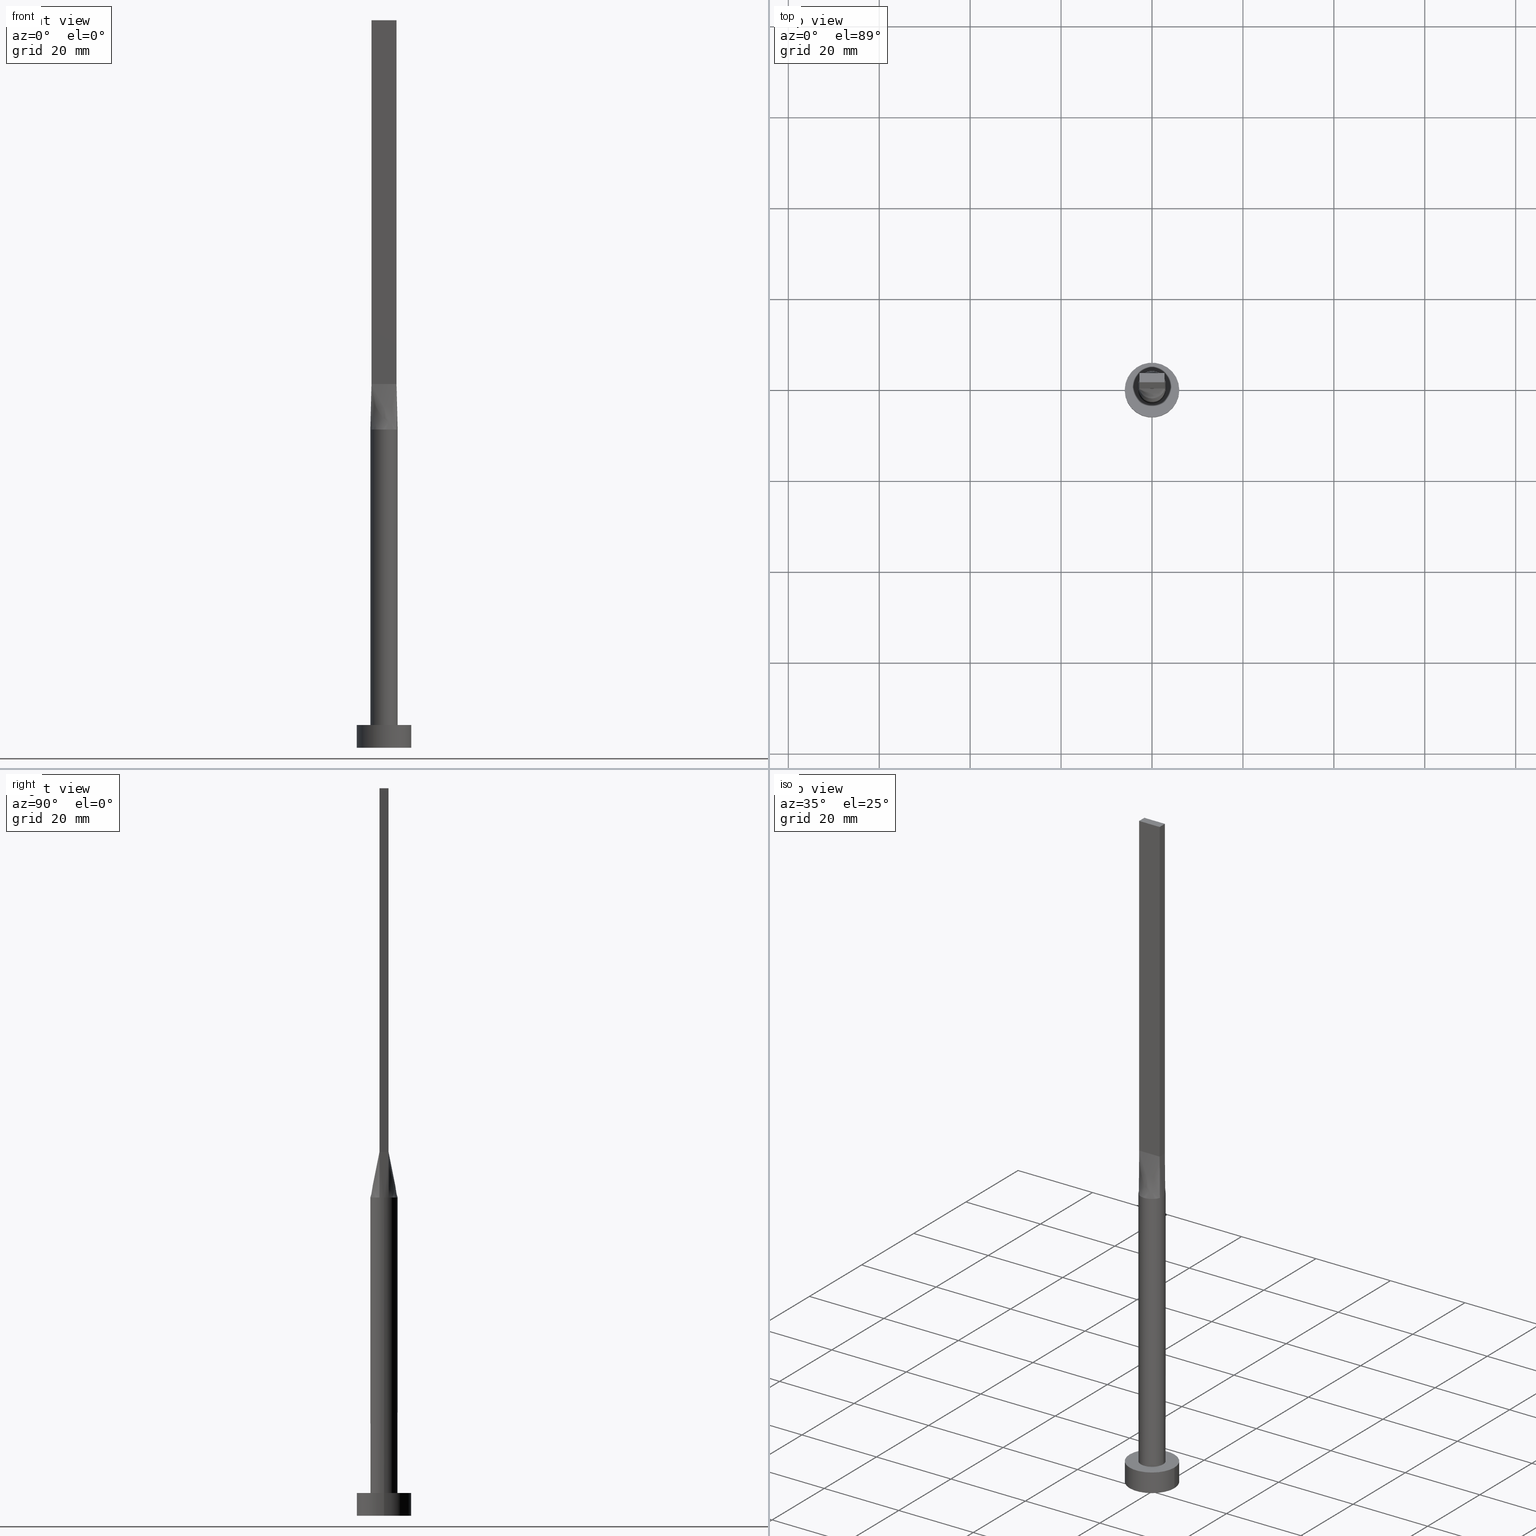
[diagram: canonical four-view strip — front | top / right | iso, engineering-drawing reading convention]
A machine part, canonical four-view strip (front | top / right | iso — engineering-drawing reading convention). The complete STEP part file that produces these views, byte-faithful:
ISO-10303-21;
HEADER;
FILE_DESCRIPTION (( 'STEP AP203' ),
    '1' );
FILE_NAME ('f26c.STEP',
    '2023-02-13T10:27:28',
    ( '' ),
    ( '' ),
    'SwSTEP 2.0',
    'SolidWorks 2019',
    '' );
FILE_SCHEMA (( 'CONFIG_CONTROL_DESIGN' ));
ENDSEC;

DATA;
#1 = LINE ( 'NONE', #88, #5 ) ;
#2 = FACE_OUTER_BOUND ( 'NONE', #549, .T. ) ;
#3 = EDGE_LOOP ( 'NONE', ( #19, #488, #434, #254 ) ) ;
#4 = CALENDAR_DATE ( 2023, 13, 2 ) ;
#5 = VECTOR ( 'NONE', #262, 1000.000000000000000 ) ;
#6 = PLANE ( 'NONE',  #38 ) ;
#7 = ADVANCED_FACE ( 'NONE', ( #551 ), #134, .T. ) ;
#8 = DIRECTION ( 'NONE',  ( 1.000000000000000000, 0.000000000000000000, -0.000000000000000000 ) ) ;
#9 = ORIENTED_EDGE ( 'NONE', *, *, #328, .T. ) ;
#10 = PERSON_AND_ORGANIZATION ( #141, #87 ) ;
#11 = CARTESIAN_POINT ( 'NONE',  ( 2.819412401233197141, 1.025240989080170806, 70.00000000000000000 ) ) ;
#12 = VERTEX_POINT ( 'NONE', #59 ) ;
#13 = DATE_TIME_ROLE ( 'creation_date' ) ;
#14 = EDGE_CURVE ( 'NONE', #447, #267, #521, .T. ) ;
#15 = DIRECTION ( 'NONE',  ( -0.000000000000000000, -0.000000000000000000, -1.000000000000000000 ) ) ;
#16 = CC_DESIGN_APPROVAL ( #357, ( #471 ) ) ;
#17 = CARTESIAN_POINT ( 'NONE',  ( -0.4583333333333324267, 1.000000000000000000, 79.99999999999998579 ) ) ;
#18 = EDGE_CURVE ( 'NONE', #450, #12, #317, .T. ) ;
#19 = ORIENTED_EDGE ( 'NONE', *, *, #519, .T. ) ;
#20 = CARTESIAN_POINT ( 'NONE',  ( -2.819380270465311700, -1.025229189260111973, 70.00000000000000000 ) ) ;
#21 = CARTESIAN_POINT ( 'NONE',  ( 0.6998073349918605413, 2.936959335800557014, 69.99999999999997158 ) ) ;
#22 = CARTESIAN_POINT ( 'NONE',  ( -1.604166666666665186, 1.000000000000000000, 79.99999999999998579 ) ) ;
#23 = CARTESIAN_POINT ( 'NONE',  ( 0.000000000000000000, 0.000000000000000000, 70.00000000000000000 ) ) ;
#24 = EDGE_CURVE ( 'NONE', #315, #439, #117, .T. ) ;
#25 = CARTESIAN_POINT ( 'NONE',  ( -1.338960936578150518, -2.706038443291638007, 70.00000000000000000 ) ) ;
#26 = CARTESIAN_POINT ( 'NONE',  ( 0.6998073349918603192, -2.936959335800557902, 70.00000000000001421 ) ) ;
#27 = DIRECTION ( 'NONE',  ( 0.006937837988376413349, -0.002522850177591350138, 0.9999727504442450510 ) ) ;
#28 = UNCERTAINTY_MEASURE_WITH_UNIT (LENGTH_MEASURE( 1.000000000000000082E-05 ), #429, 'distance_accuracy_value', 'NONE');
#29 = DIRECTION ( 'NONE',  ( -0.000000000000000000, -0.000000000000000000, -1.000000000000000000 ) ) ;
#30 = CARTESIAN_POINT ( 'NONE',  ( 2.750000000000000000, -0.9999999999999997780, 80.00000000000000000 ) ) ;
#31 = CARTESIAN_POINT ( 'NONE',  ( 2.314486317179579533, -1.928337902455807606, 70.00000000000001421 ) ) ;
#32 = LINE ( 'NONE', #255, #285 ) ;
#33 = ORIENTED_EDGE ( 'NONE', *, *, #383, .T. ) ;
#34 = FACE_OUTER_BOUND ( 'NONE', #179, .T. ) ;
#35 = CARTESIAN_POINT ( 'NONE',  ( -2.819380270465311700, -1.025229189260112195, 70.00000000000000000 ) ) ;
#36 = ORIENTED_EDGE ( 'NONE', *, *, #486, .T. ) ;
#37 = CIRCLE ( 'NONE', #360, 6.000000000000000888 ) ;
#38 = AXIS2_PLACEMENT_3D ( 'NONE', #499, #98, #184 ) ;
#39 = FACE_OUTER_BOUND ( 'NONE', #493, .T. ) ;
#40 = LINE ( 'NONE', #218, #489 ) ;
#41 = ORIENTED_EDGE ( 'NONE', *, *, #157, .F. ) ;
#42 = APPROVAL_STATUS ( 'not_yet_approved' ) ;
#43 = ORIENTED_EDGE ( 'NONE', *, *, #80, .F. ) ;
#44 = VERTEX_POINT ( 'NONE', #336 ) ;
#45 = AXIS2_PLACEMENT_3D ( 'NONE', #472, #368, #339 ) ;
#46 = LOCAL_TIME ( 11, 27, 28.00000000000000000, #389 ) ;
#47 = DIRECTION ( 'NONE',  ( -1.000000000000000000, -0.000000000000000000, -0.000000000000000000 ) ) ;
#48 = CIRCLE ( 'NONE', #387, 3.000000000000000444 ) ;
#49 = ORIENTED_EDGE ( 'NONE', *, *, #455, .F. ) ;
#50 = CALENDAR_DATE ( 2023, 13, 2 ) ;
#51 = CARTESIAN_POINT ( 'NONE',  ( -2.115507543051069916, 2.149870311632977593, 69.99999999999998579 ) ) ;
#52 = CC_DESIGN_PERSON_AND_ORGANIZATION_ASSIGNMENT ( #316, #503, ( #151 ) ) ;
#53 = CARTESIAN_POINT ( 'NONE',  ( -1.338960936578149408, 2.706038443291637119, 69.99999999999998579 ) ) ;
#54 = CC_DESIGN_APPROVAL ( #445, ( #151 ) ) ;
#55 = CARTESIAN_POINT ( 'NONE',  ( -2.520833333333332593, 1.000000000000000000, 79.99999999999998579 ) ) ;
#56 = CARTESIAN_POINT ( 'NONE',  ( -2.750000000000000000, -0.9999999999999993339, 80.00000000000000000 ) ) ;
#57 = DIRECTION ( 'NONE',  ( -0.000000000000000000, -0.000000000000000000, -1.000000000000000000 ) ) ;
#58 = DIRECTION ( 'NONE',  ( 0.000000000000000000, -0.000000000000000000, -1.000000000000000000 ) ) ;
#59 = CARTESIAN_POINT ( 'NONE',  ( 3.000000000000000444, 3.673940397442060361E-16, 5.000000000000000000 ) ) ;
#60 = ADVANCED_FACE ( 'NONE', ( #250 ), #205, .T. ) ;
#61 = CARTESIAN_POINT ( 'NONE',  ( -2.115507543051069916, 2.149870311632977593, 69.99999999999998579 ) ) ;
#62 = DIRECTION ( 'NONE',  ( 0.000000000000000000, 0.000000000000000000, 1.000000000000000000 ) ) ;
#63 = CARTESIAN_POINT ( 'NONE',  ( 2.520833333333333037, 1.000000000000000000, 80.00000000000000000 ) ) ;
#64 = CARTESIAN_POINT ( 'NONE',  ( 2.749999999999999556, 1.000000000000000000, 160.0000000000000000 ) ) ;
#65 = DIRECTION ( 'NONE',  ( 1.000000000000000000, 0.000000000000000000, 0.000000000000000000 ) ) ;
#66 = AXIS2_PLACEMENT_3D ( 'NONE', #173, #217, #347 ) ;
#67 = CARTESIAN_POINT ( 'NONE',  ( -2.115507543051069472, -2.149870311632975373, 70.00000000000000000 ) ) ;
#68 = CARTESIAN_POINT ( 'NONE',  ( 2.750000000000000000, -0.9999999999999997780, 160.0000000000000000 ) ) ;
#69 = CARTESIAN_POINT ( 'NONE',  ( 3.000000000000000444, -0.3523499553598126721, 69.99999999999998579 ) ) ;
#70 = CARTESIAN_POINT ( 'NONE',  ( 2.625980160873452984, -1.476334031700886618, 70.00000000000001421 ) ) ;
#71 = APPROVAL ( #42, 'NEUR�EN�' ) ;
#72 = FACE_OUTER_BOUND ( 'NONE', #350, .T. ) ;
#73 = PLANE ( 'NONE',  #232 ) ;
#74 = VECTOR ( 'NONE', #277, 1000.000000000000114 ) ;
#75 = APPROVAL_STATUS ( 'not_yet_approved' ) ;
#76 = CARTESIAN_POINT ( 'NONE',  ( -3.000000000000000444, 0.000000000000000000, 5.000000000000000000 ) ) ;
#77 = CARTESIAN_POINT ( 'NONE',  ( 0.000000000000000000, 0.000000000000000000, 5.000000000000000000 ) ) ;
#78 = ORIENTED_EDGE ( 'NONE', *, *, #376, .F. ) ;
#79 = PERSON_AND_ORGANIZATION_ROLE ( 'classification_officer' ) ;
#80 = EDGE_CURVE ( 'NONE', #502, #139, #528, .T. ) ;
#81 = CARTESIAN_POINT ( 'NONE',  ( 6.000000000000000888, 7.347880794884120722E-16, 5.000000000000000000 ) ) ;
#82 = CARTESIAN_POINT ( 'NONE',  ( -2.936168591633195657, -0.7040613060484334218, 70.00000000000000000 ) ) ;
#83 = VERTEX_POINT ( 'NONE', #548 ) ;
#84 = DIRECTION ( 'NONE',  ( -0.000000000000000000, -0.000000000000000000, -1.000000000000000000 ) ) ;
#85 = EDGE_LOOP ( 'NONE', ( #219, #546, #33, #185 ) ) ;
#86 = VECTOR ( 'NONE', #352, 1000.000000000000000 ) ;
#87 = ORGANIZATION ( 'NEUR�EN�', 'NEUR�EN�', '' ) ;
#88 = CARTESIAN_POINT ( 'NONE',  ( -2.750000000000000000, -0.9999999999999993339, 160.0000000000000000 ) ) ;
#89 = CARTESIAN_POINT ( 'NONE',  ( -2.749999999999999556, 1.000000000000000000, 80.00000000000000000 ) ) ;
#90 = VERTEX_POINT ( 'NONE', #411 ) ;
#91 = DIRECTION ( 'NONE',  ( -0.000000000000000000, -0.000000000000000000, -1.000000000000000000 ) ) ;
#92 = ORIENTED_EDGE ( 'NONE', *, *, #157, .T. ) ;
#93 = FACE_OUTER_BOUND ( 'NONE', #540, .T. ) ;
#94 = LINE ( 'NONE', #452, #332 ) ;
#95 = ORIENTED_EDGE ( 'NONE', *, *, #351, .T. ) ;
#96 = APPROVAL_DATE_TIME ( #312, #445 ) ;
#97 = CIRCLE ( 'NONE', #298, 3.000000000000000444 ) ;
#98 = DIRECTION ( 'NONE',  ( 7.885106708985487801E-17, 1.000000000000000000, -0.000000000000000000 ) ) ;
#99 = CARTESIAN_POINT ( 'NONE',  ( -2.625980160873452096, 1.476334031700886396, 69.99999999999998579 ) ) ;
#100 = EDGE_LOOP ( 'NONE', ( #495, #365, #183, #374 ) ) ;
#101 = CARTESIAN_POINT ( 'NONE',  ( -1.833333333333332149, 1.000000000000000000, 79.99999999999998579 ) ) ;
#102 = FACE_OUTER_BOUND ( 'NONE', #307, .T. ) ;
#103 = CIRCLE ( 'NONE', #566, 6.000000000000000888 ) ;
#104 = EDGE_CURVE ( 'NONE', #90, #187, #48, .T. ) ;
#105 = CARTESIAN_POINT ( 'NONE',  ( 0.4583333333333342030, 1.000000000000000000, 79.99999999999998579 ) ) ;
#106 = CARTESIAN_POINT ( 'NONE',  ( 1.338960936578149630, 2.706038443291637563, 70.00000000000000000 ) ) ;
#107 = CARTESIAN_POINT ( 'NONE',  ( -0.3502136323054380052, -3.000000000000000888, 70.00000000000000000 ) ) ;
#108 = CARTESIAN_POINT ( 'NONE',  ( -2.749999999999999556, 1.000000000000000000, 80.00000000000000000 ) ) ;
#109 = CARTESIAN_POINT ( 'NONE',  ( -2.739088299662391979, -1.246032108968140983, 70.00000000000001421 ) ) ;
#110 = CARTESIAN_POINT ( 'NONE',  ( -2.784690135232656072, -1.012614594630055764, 75.00000000000001421 ) ) ;
#111 = EDGE_CURVE ( 'NONE', #388, #398, #446, .T. ) ;
#112 = AXIS2_PLACEMENT_3D ( 'NONE', #323, #510, #149 ) ;
#113 = DIRECTION ( 'NONE',  ( 0.000000000000000000, 0.000000000000000000, 1.000000000000000000 ) ) ;
#114 = SECURITY_CLASSIFICATION ( '', '', #222 ) ;
#115 = CARTESIAN_POINT ( 'NONE',  ( -1.145833333333333703, -0.9999999999999993339, 79.99999999999998579 ) ) ;
#116 = DIRECTION ( 'NONE',  ( 1.000000000000000000, 0.000000000000000000, 0.000000000000000000 ) ) ;
#117 = LINE ( 'NONE', #68, #272 ) ;
#118 = ORIENTED_EDGE ( 'NONE', *, *, #147, .F. ) ;
#119 = CARTESIAN_POINT ( 'NONE',  ( -2.749999999999999556, 1.000000000000000000, 160.0000000000000000 ) ) ;
#120 = PERSON_AND_ORGANIZATION ( #141, #87 ) ;
#121 = CIRCLE ( 'NONE', #314, 3.000000000000000444 ) ;
#122 = ADVANCED_FACE ( 'NONE', ( #39 ), #537, .T. ) ;
#123 = EDGE_CURVE ( 'NONE', #83, #450, #544, .T. ) ;
#124 = CARTESIAN_POINT ( 'NONE',  ( -2.749999999999999556, 0.3333333333333334814, 79.99999999999998579 ) ) ;
#125 = LINE ( 'NONE', #386, #306 ) ;
#126 = ORIENTED_EDGE ( 'NONE', *, *, #18, .T. ) ;
#127 = DIRECTION ( 'NONE',  ( 1.000000000000000000, -2.168404344971010101E-16, 0.000000000000000000 ) ) ;
#128 = CARTESIAN_POINT ( 'NONE',  ( 0.000000000000000000, 0.000000000000000000, 0.000000000000000000 ) ) ;
#129 = DIRECTION ( 'NONE',  ( 1.000000000000000000, -7.885106708985487801E-17, 0.000000000000000000 ) ) ;
#130 = ORIENTED_EDGE ( 'NONE', *, *, #413, .T. ) ;
#131 = ADVANCED_FACE ( 'NONE', ( #2 ), #576, .F. ) ;
#132 = ORIENTED_EDGE ( 'NONE', *, *, #104, .F. ) ;
#133 = APPROVAL_PERSON_ORGANIZATION ( #120, #357, #497 ) ;
#134 = B_SPLINE_SURFACE_WITH_KNOTS ( 'NONE', 3, 1, ( 
 ( #555, #560 ),
 ( #242, #63 ),
 ( #511, #468 ),
 ( #319, #508 ),
 ( #417, #330 ),
 ( #273, #456 ),
 ( #280, #465 ),
 ( #558, #105 ),
 ( #361, #143 ),
 ( #152, #515 ),
 ( #156, #17 ),
 ( #53, #518 ),
 ( #231, #363 ),
 ( #51, #22 ),
 ( #193, #101 ),
 ( #276, #462 ),
 ( #228, #55 ),
 ( #412, #108 ) ),
 .UNSPECIFIED., .F., .F., .F.,
 ( 4, 2, 2, 2, 2, 2, 2, 2, 4 ),
 ( 2, 2 ),
 ( 0.000000000000000000, 0.1249999999999998890, 0.2499999999999997780, 0.3749999999999997780, 0.4999999999999997780, 0.6249999999999997780, 0.7499999999999997780, 0.8749999999999998890, 1.000000000000000000 ),
 ( 0.000000000000000000, 1.000000000000000000 ),
 .UNSPECIFIED. ) ;
#135 = EDGE_LOOP ( 'NONE', ( #270, #304, #354, #49 ) ) ;
#136 = ORIENTED_EDGE ( 'NONE', *, *, #24, .F. ) ;
#137 = CALENDAR_DATE ( 2023, 13, 2 ) ;
#138 = DIRECTION ( 'NONE',  ( 0.000000000000000000, 0.000000000000000000, 1.000000000000000000 ) ) ;
#139 = VERTEX_POINT ( 'NONE', #536 ) ;
#140 = AXIS2_PLACEMENT_3D ( 'NONE', #524, #293, #8 ) ;
#141 = PERSON ( 'NEUR�EN�', 'NEUR�EN�', 'NEUR�EN�', ('NEUR�EN�'), ('NEUR�EN�'), ('NEUR�EN�') ) ;
#142 = CIRCLE ( 'NONE', #216, 6.000000000000000888 ) ;
#143 = CARTESIAN_POINT ( 'NONE',  ( 0.2291666666666671015, 1.000000000000000000, 79.99999999999998579 ) ) ;
#144 = CARTESIAN_POINT ( 'NONE',  ( 2.749999999999999556, 1.000000000000000000, 160.0000000000000000 ) ) ;
#145 = CARTESIAN_POINT ( 'NONE',  ( 2.750000000000000000, -0.9999999999999997780, 160.0000000000000000 ) ) ;
#146 = LINE ( 'NONE', #281, #74 ) ;
#147 = EDGE_CURVE ( 'NONE', #398, #388, #142, .T. ) ;
#148 = ORIENTED_EDGE ( 'NONE', *, *, #460, .T. ) ;
#149 = DIRECTION ( 'NONE',  ( 1.000000000000000000, 0.000000000000000000, 0.000000000000000000 ) ) ;
#150 = AXIS2_PLACEMENT_3D ( 'NONE', #23, #516, #512 ) ;
#151 = PRODUCT_DEFINITION_FORMATION_WITH_SPECIFIED_SOURCE ( 'LIBOVOLN�', '', #491, .NOT_KNOWN. ) ;
#152 = CARTESIAN_POINT ( 'NONE',  ( -0.3502136323054376721, 2.999999999999999112, 70.00000000000001421 ) ) ;
#153 = DIRECTION ( 'NONE',  ( -0.000000000000000000, -0.000000000000000000, -1.000000000000000000 ) ) ;
#154 = CARTESIAN_POINT ( 'NONE',  ( -0.6998073349918608743, 2.936959335800557014, 70.00000000000000000 ) ) ;
#155 = CARTESIAN_POINT ( 'NONE',  ( 1.338960936578149630, -2.706038443291638007, 69.99999999999998579 ) ) ;
#156 = CARTESIAN_POINT ( 'NONE',  ( -0.6998073349918608743, 2.936959335800557014, 70.00000000000000000 ) ) ;
#157 = EDGE_CURVE ( 'NONE', #235, #322, #390, .T. ) ;
#158 = CARTESIAN_POINT ( 'NONE',  ( 0.4583333333333329263, -0.9999999999999995559, 79.99999999999998579 ) ) ;
#159 = CC_DESIGN_PERSON_AND_ORGANIZATION_ASSIGNMENT ( #440, #79, ( #114 ) ) ;
#160 = ORIENTED_EDGE ( 'NONE', *, *, #382, .T. ) ;
#161 =( GEOMETRIC_REPRESENTATION_CONTEXT ( 3 ) GLOBAL_UNCERTAINTY_ASSIGNED_CONTEXT ( ( #28 ) ) GLOBAL_UNIT_ASSIGNED_CONTEXT ( ( #429, #212, #256 ) ) REPRESENTATION_CONTEXT ( 'NONE', 'WORKASPACE' ) );
#162 = FACE_BOUND ( 'NONE', #189, .T. ) ;
#163 = APPLICATION_PROTOCOL_DEFINITION ( 'international standard', 'config_control_design', 1994, #400 ) ;
#164 = LINE ( 'NONE', #110, #500 ) ;
#165 = CARTESIAN_POINT ( 'NONE',  ( 0.000000000000000000, 0.000000000000000000, 5.000000000000000000 ) ) ;
#166 = PERSON_AND_ORGANIZATION_ROLE ( 'design_owner' ) ;
#167 = DIRECTION ( 'NONE',  ( 0.000000000000000000, 0.000000000000000000, 1.000000000000000000 ) ) ;
#168 = ORIENTED_EDGE ( 'NONE', *, *, #326, .F. ) ;
#169 = VECTOR ( 'NONE', #201, 1000.000000000000114 ) ;
#170 = AXIS2_PLACEMENT_3D ( 'NONE', #252, #343, #441 ) ;
#171 = ORIENTED_EDGE ( 'NONE', *, *, #14, .F. ) ;
#172 = PERSON_AND_ORGANIZATION_ROLE ( 'design_supplier' ) ;
#173 = CARTESIAN_POINT ( 'NONE',  ( 0.000000000000000000, 0.000000000000000000, 0.000000000000000000 ) ) ;
#174 = VERTEX_POINT ( 'NONE', #509 ) ;
#175 = CALENDAR_DATE ( 2023, 13, 2 ) ;
#176 = EDGE_LOOP ( 'NONE', ( #180, #327, #457, #449, #264, #300 ) ) ;
#177 = APPROVAL_DATE_TIME ( #211, #71 ) ;
#178 = FACE_OUTER_BOUND ( 'NONE', #135, .T. ) ;
#179 = EDGE_LOOP ( 'NONE', ( #36, #341, #43, #148 ) ) ;
#180 = ORIENTED_EDGE ( 'NONE', *, *, #416, .F. ) ;
#181 = APPROVAL_STATUS ( 'not_yet_approved' ) ;
#182 = EDGE_CURVE ( 'NONE', #439, #322, #454, .T. ) ;
#183 = ORIENTED_EDGE ( 'NONE', *, *, #519, .F. ) ;
#184 = DIRECTION ( 'NONE',  ( -1.000000000000000000, 7.885106708985487801E-17, 0.000000000000000000 ) ) ;
#185 = ORIENTED_EDGE ( 'NONE', *, *, #24, .T. ) ;
#186 = AXIS2_PLACEMENT_3D ( 'NONE', #346, #535, #533 ) ;
#187 = VERTEX_POINT ( 'NONE', #408 ) ;
#188 = COORDINATED_UNIVERSAL_TIME_OFFSET ( 1, 0, .AHEAD. ) ;
#189 = EDGE_LOOP ( 'NONE', ( #485, #261 ) ) ;
#190 = CARTESIAN_POINT ( 'NONE',  ( -2.749999999999999556, 1.000000000000000000, 80.00000000000000000 ) ) ;
#191 = CARTESIAN_POINT ( 'NONE',  ( -0.3502136323054376721, 2.999999999999999112, 70.00000000000001421 ) ) ;
#192 = CARTESIAN_POINT ( 'NONE',  ( -1.627925520694712525, -2.539128397820340055, 69.99999999999998579 ) ) ;
#193 = CARTESIAN_POINT ( 'NONE',  ( -2.314486317179579977, 1.928337902455808051, 70.00000000000000000 ) ) ;
#194 = CYLINDRICAL_SURFACE ( 'NONE', #575, 6.000000000000000888 ) ;
#195 = CARTESIAN_POINT ( 'NONE',  ( 2.819380270465311700, -1.025229189260112417, 70.00000000000000000 ) ) ;
#196 = CLOSED_SHELL ( 'NONE', ( #60, #367, #301, #498, #131, #243, #309, #369, #122, #7, #345, #568, #220, #313, #207 ) ) ;
#197 = CARTESIAN_POINT ( 'NONE',  ( 2.936168591633195657, 0.7040613060484338659, 70.00000000000000000 ) ) ;
#198 = CARTESIAN_POINT ( 'NONE',  ( 0.9166666666666661856, -0.9999999999999995559, 79.99999999999998579 ) ) ;
#199 = ORIENTED_EDGE ( 'NONE', *, *, #561, .T. ) ;
#200 = CARTESIAN_POINT ( 'NONE',  ( -2.314486317179578645, -1.928337902455806496, 70.00000000000000000 ) ) ;
#201 = DIRECTION ( 'NONE',  ( -0.006937837988376369981, 0.002522850177591328454, 0.9999727504442450510 ) ) ;
#202 = DIRECTION ( 'NONE',  ( 1.000000000000000000, 0.000000000000000000, 0.000000000000000000 ) ) ;
#203 = CARTESIAN_POINT ( 'NONE',  ( 2.750000000000000000, -0.9999999999999997780, 160.0000000000000000 ) ) ;
#204 = CC_DESIGN_APPROVAL ( #71, ( #114 ) ) ;
#205 = CYLINDRICAL_SURFACE ( 'NONE', #432, 3.000000000000000444 ) ;
#206 = CARTESIAN_POINT ( 'NONE',  ( 2.750000000000000000, -0.3333333333333318160, 79.99999999999998579 ) ) ;
#207 = ADVANCED_FACE ( 'NONE', ( #229 ), #542, .T. ) ;
#208 = DIRECTION ( 'NONE',  ( -0.000000000000000000, -0.000000000000000000, -1.000000000000000000 ) ) ;
#209 = ORIENTED_EDGE ( 'NONE', *, *, #321, .T. ) ;
#210 = CARTESIAN_POINT ( 'NONE',  ( 2.784690135232656072, -1.012614594630056208, 75.00000000000001421 ) ) ;
#211 = DATE_AND_TIME ( #175, #461 ) ;
#212 =( NAMED_UNIT ( * ) PLANE_ANGLE_UNIT ( ) SI_UNIT ( $, .RADIAN. ) );
#213 = CARTESIAN_POINT ( 'NONE',  ( -3.000000000000000444, 0.000000000000000000, 70.00000000000000000 ) ) ;
#214 = AXIS2_PLACEMENT_3D ( 'NONE', #477, #62, #419 ) ;
#215 = ORIENTED_EDGE ( 'NONE', *, *, #236, .T. ) ;
#216 = AXIS2_PLACEMENT_3D ( 'NONE', #128, #302, #487 ) ;
#217 = DIRECTION ( 'NONE',  ( 0.000000000000000000, 0.000000000000000000, 1.000000000000000000 ) ) ;
#218 = CARTESIAN_POINT ( 'NONE',  ( 6.000000000000000888, 7.347880794884120722E-16, 5.000000000000000000 ) ) ;
#219 = ORIENTED_EDGE ( 'NONE', *, *, #507, .T. ) ;
#220 = ADVANCED_FACE ( 'NONE', ( #93 ), #6, .F. ) ;
#221 = ORIENTED_EDGE ( 'NONE', *, *, #104, .T. ) ;
#222 = SECURITY_CLASSIFICATION_LEVEL ( 'unclassified' ) ;
#223 = AXIS2_PLACEMENT_3D ( 'NONE', #530, #29, #428 ) ;
#224 = ORIENTED_EDGE ( 'NONE', *, *, #455, .T. ) ;
#225 = APPROVAL_ROLE ( '' ) ;
#226 = VECTOR ( 'NONE', #297, 1000.000000000000000 ) ;
#227 = ORIENTED_EDGE ( 'NONE', *, *, #328, .F. ) ;
#228 = CARTESIAN_POINT ( 'NONE',  ( -2.739088299662392423, 1.246032108968142316, 70.00000000000000000 ) ) ;
#229 = FACE_OUTER_BOUND ( 'NONE', #85, .T. ) ;
#230 = CARTESIAN_POINT ( 'NONE',  ( 2.749999999999999556, 0.6666666666666676289, 79.99999999999998579 ) ) ;
#231 = CARTESIAN_POINT ( 'NONE',  ( -1.627925520694712747, 2.539128397820341831, 70.00000000000000000 ) ) ;
#232 = AXIS2_PLACEMENT_3D ( 'NONE', #571, #127, #248 ) ;
#233 = APPROVAL_PERSON_ORGANIZATION ( #10, #445, #355 ) ;
#234 = CARTESIAN_POINT ( 'NONE',  ( 2.739088299662392867, 1.246032108968142538, 70.00000000000002842 ) ) ;
#235 = VERTEX_POINT ( 'NONE', #504 ) ;
#236 = EDGE_CURVE ( 'NONE', #447, #83, #333, .T. ) ;
#237 = FACE_OUTER_BOUND ( 'NONE', #337, .T. ) ;
#238 = CARTESIAN_POINT ( 'NONE',  ( 6.000000000000000888, 7.347880794884120722E-16, 0.000000000000000000 ) ) ;
#239 = CYLINDRICAL_SURFACE ( 'NONE', #150, 3.000000000000000444 ) ;
#240 = CARTESIAN_POINT ( 'NONE',  ( 2.314486317179579977, 1.928337902455807384, 70.00000000000002842 ) ) ;
#241 = CARTESIAN_POINT ( 'NONE',  ( -2.291666666666666519, -0.9999999999999993339, 79.99999999999998579 ) ) ;
#242 = CARTESIAN_POINT ( 'NONE',  ( 2.739088299662392867, 1.246032108968142538, 70.00000000000002842 ) ) ;
#243 = ADVANCED_FACE ( 'NONE', ( #102 ), #239, .T. ) ;
#244 = DIRECTION ( 'NONE',  ( 1.000000000000000000, 0.000000000000000000, 0.000000000000000000 ) ) ;
#245 = VECTOR ( 'NONE', #385, 1000.000000000000000 ) ;
#246 = CARTESIAN_POINT ( 'NONE',  ( -0.9166666666666670737, -0.9999999999999993339, 79.99999999999998579 ) ) ;
#247 = DIRECTION ( 'NONE',  ( -0.000000000000000000, -0.000000000000000000, -1.000000000000000000 ) ) ;
#248 = DIRECTION ( 'NONE',  ( 2.168404344971010101E-16, 1.000000000000000000, 0.000000000000000000 ) ) ;
#249 = DIRECTION ( 'NONE',  ( 0.000000000000000000, 0.000000000000000000, 1.000000000000000000 ) ) ;
#250 = FACE_OUTER_BOUND ( 'NONE', #176, .T. ) ;
#251 = CC_DESIGN_PERSON_AND_ORGANIZATION_ASSIGNMENT ( #359, #406, ( #471 ) ) ;
#252 = CARTESIAN_POINT ( 'NONE',  ( 0.000000000000000000, 0.000000000000000000, 0.000000000000000000 ) ) ;
#253 = FACE_OUTER_BOUND ( 'NONE', #290, .T. ) ;
#254 = ORIENTED_EDGE ( 'NONE', *, *, #182, .T. ) ;
#255 = CARTESIAN_POINT ( 'NONE',  ( -2.749999999999999556, 1.000000000000000000, 160.0000000000000000 ) ) ;
#256 =( NAMED_UNIT ( * ) SI_UNIT ( $, .STERADIAN. ) SOLID_ANGLE_UNIT ( ) );
#257 = CC_DESIGN_DATE_AND_TIME_ASSIGNMENT ( #463, #13, ( #471 ) ) ;
#258 = CARTESIAN_POINT ( 'NONE',  ( -2.750000000000000000, -0.9999999999999991118, 80.00000000000000000 ) ) ;
#259 = LINE ( 'NONE', #296, #451 ) ;
#260 = ORIENTED_EDGE ( 'NONE', *, *, #480, .T. ) ;
#261 = ORIENTED_EDGE ( 'NONE', *, *, #435, .F. ) ;
#262 = DIRECTION ( 'NONE',  ( -0.000000000000000000, -0.000000000000000000, -1.000000000000000000 ) ) ;
#263 = CARTESIAN_POINT ( 'NONE',  ( -2.936168591633194769, 0.7040613060484341990, 70.00000000000001421 ) ) ;
#264 = ORIENTED_EDGE ( 'NONE', *, *, #236, .F. ) ;
#265 = ADVANCED_BREP_SHAPE_REPRESENTATION ( 'f26c', ( #579, #170 ), #161 ) ;
#266 = B_SPLINE_CURVE_WITH_KNOTS ( 'NONE', 3,
 ( #422, #234, #375, #240, #409, #415, #106, #21, #505, #191, #154, #366, #556, #61, #418, #99, #325, #513 ),
 .UNSPECIFIED., .F., .F.,
 ( 4, 2, 2, 2, 2, 2, 2, 2, 4 ),
 ( 0.000000000000000000, 0.1249999999999998890, 0.2499999999999997780, 0.3749999999999997780, 0.4999999999999997780, 0.6249999999999997780, 0.7499999999999997780, 0.8749999999999998890, 1.000000000000000000 ),
 .UNSPECIFIED. ) ;
#267 = VERTEX_POINT ( 'NONE', #190 ) ;
#268 = CC_DESIGN_PERSON_AND_ORGANIZATION_ASSIGNMENT ( #381, #166, ( #491 ) ) ;
#269 = CARTESIAN_POINT ( 'NONE',  ( -2.750000000000000000, -0.3333333333333328152, 79.99999999999998579 ) ) ;
#270 = ORIENTED_EDGE ( 'NONE', *, *, #554, .F. ) ;
#271 = CC_DESIGN_SECURITY_CLASSIFICATION ( #114, ( #151 ) ) ;
#272 = VECTOR ( 'NONE', #473, 1000.000000000000000 ) ;
#273 = CARTESIAN_POINT ( 'NONE',  ( 1.627925520694712080, 2.539128397820340943, 69.99999999999998579 ) ) ;
#274 = CALENDAR_DATE ( 2023, 13, 2 ) ;
#275 = EDGE_CURVE ( 'NONE', #522, #322, #146, .T. ) ;
#276 = CARTESIAN_POINT ( 'NONE',  ( -2.625980160873452096, 1.476334031700886396, 69.99999999999998579 ) ) ;
#277 = DIRECTION ( 'NONE',  ( -0.006937837988376413349, -0.002522850177591328454, 0.9999727504442450510 ) ) ;
#278 = CARTESIAN_POINT ( 'NONE',  ( 3.000000000000000444, 3.673940397442060361E-16, 70.00000000000000000 ) ) ;
#279 = FACE_OUTER_BOUND ( 'NONE', #3, .T. ) ;
#280 = CARTESIAN_POINT ( 'NONE',  ( 1.338960936578149630, 2.706038443291637563, 70.00000000000000000 ) ) ;
#281 = CARTESIAN_POINT ( 'NONE',  ( 2.784690135232655628, 1.012614594630056430, 75.00000000000001421 ) ) ;
#282 = CARTESIAN_POINT ( 'NONE',  ( 0.3502136323054372835, -3.000000000000000444, 70.00000000000001421 ) ) ;
#283 = CARTESIAN_POINT ( 'NONE',  ( -2.520833333333333037, -0.9999999999999993339, 79.99999999999998579 ) ) ;
#284 = PLANE ( 'NONE',  #421 ) ;
#285 = VECTOR ( 'NONE', #84, 1000.000000000000000 ) ;
#286 = CARTESIAN_POINT ( 'NONE',  ( 1.833333333333333037, -0.9999999999999995559, 79.99999999999998579 ) ) ;
#287 = AXIS2_PLACEMENT_3D ( 'NONE', #404, #138, #396 ) ;
#288 = VECTOR ( 'NONE', #91, 1000.000000000000000 ) ;
#289 = DIRECTION ( 'NONE',  ( 0.000000000000000000, 0.000000000000000000, 1.000000000000000000 ) ) ;
#290 = EDGE_LOOP ( 'NONE', ( #394, #344 ) ) ;
#291 = CARTESIAN_POINT ( 'NONE',  ( 2.819380270465311700, -1.025229189260113083, 70.00000000000000000 ) ) ;
#292 = CARTESIAN_POINT ( 'NONE',  ( 2.520833333333333037, -0.9999999999999995559, 79.99999999999998579 ) ) ;
#293 = DIRECTION ( 'NONE',  ( 0.000000000000000000, 0.000000000000000000, 1.000000000000000000 ) ) ;
#294 = ORIENTED_EDGE ( 'NONE', *, *, #275, .T. ) ;
#295 = CYLINDRICAL_SURFACE ( 'NONE', #223, 6.000000000000000888 ) ;
#296 = CARTESIAN_POINT ( 'NONE',  ( -6.000000000000000888, 0.000000000000000000, 5.000000000000000000 ) ) ;
#297 = DIRECTION ( 'NONE',  ( -2.168404344971009854E-16, -1.000000000000000000, 0.000000000000000000 ) ) ;
#298 = AXIS2_PLACEMENT_3D ( 'NONE', #433, #437, #484 ) ;
#299 = CARTESIAN_POINT ( 'NONE',  ( -2.819380270465311700, 1.025229189260112861, 70.00000000000000000 ) ) ;
#300 = ORIENTED_EDGE ( 'NONE', *, *, #401, .F. ) ;
#301 = ADVANCED_FACE ( 'NONE', ( #237 ), #194, .T. ) ;
#302 = DIRECTION ( 'NONE',  ( 0.000000000000000000, 0.000000000000000000, 1.000000000000000000 ) ) ;
#303 = DIRECTION ( 'NONE',  ( 0.000000000000000000, 0.000000000000000000, 1.000000000000000000 ) ) ;
#304 = ORIENTED_EDGE ( 'NONE', *, *, #527, .T. ) ;
#305 = SHAPE_DEFINITION_REPRESENTATION ( #407, #265 ) ;
#306 = VECTOR ( 'NONE', #129, 1000.000000000000000 ) ;
#307 = EDGE_LOOP ( 'NONE', ( #78, #348, #132, #578, #538, #126 ) ) ;
#308 = AXIS2_PLACEMENT_3D ( 'NONE', #77, #289, #475 ) ;
#309 = ADVANCED_FACE ( 'NONE', ( #414 ), #501, .T. ) ;
#310 = ORIENTED_EDGE ( 'NONE', *, *, #111, .F. ) ;
#311 = ORIENTED_EDGE ( 'NONE', *, *, #382, .F. ) ;
#312 = DATE_AND_TIME ( #137, #324 ) ;
#313 = ADVANCED_FACE ( 'NONE', ( #474 ), #559, .F. ) ;
#314 = AXIS2_PLACEMENT_3D ( 'NONE', #165, #303, #116 ) ;
#315 = VERTEX_POINT ( 'NONE', #203 ) ;
#316 = PERSON_AND_ORGANIZATION ( #141, #87 ) ;
#317 = CIRCLE ( 'NONE', #308, 3.000000000000000444 ) ;
#318 = CARTESIAN_POINT ( 'NONE',  ( 2.749999999999999556, 1.000000000000000000, 80.00000000000000000 ) ) ;
#319 = CARTESIAN_POINT ( 'NONE',  ( 2.314486317179579977, 1.928337902455807384, 70.00000000000002842 ) ) ;
#320 = APPROVAL_DATE_TIME ( #399, #357 ) ;
#321 = EDGE_CURVE ( 'NONE', #83, #90, #370, .T. ) ;
#322 = VERTEX_POINT ( 'NONE', #424 ) ;
#323 = CARTESIAN_POINT ( 'NONE',  ( 0.000000000000000000, 0.000000000000000000, 70.00000000000000000 ) ) ;
#324 = LOCAL_TIME ( 11, 27, 28.00000000000000000, #547 ) ;
#325 = CARTESIAN_POINT ( 'NONE',  ( -2.739088299662392423, 1.246032108968142316, 70.00000000000000000 ) ) ;
#326 = EDGE_CURVE ( 'NONE', #358, #570, #103, .T. ) ;
#327 = ORIENTED_EDGE ( 'NONE', *, *, #376, .T. ) ;
#328 = EDGE_CURVE ( 'NONE', #174, #90, #164, .T. ) ;
#329 = CARTESIAN_POINT ( 'NONE',  ( 0.000000000000000000, 0.000000000000000000, 5.000000000000000000 ) ) ;
#330 = CARTESIAN_POINT ( 'NONE',  ( 1.604166666666667185, 1.000000000000000000, 79.99999999999998579 ) ) ;
#331 = CARTESIAN_POINT ( 'NONE',  ( -0.2291666666666671015, -0.9999999999999993339, 80.00000000000000000 ) ) ;
#332 = VECTOR ( 'NONE', #47, 1000.000000000000000 ) ;
#333 = CIRCLE ( 'NONE', #112, 3.000000000000000444 ) ;
#334 = CARTESIAN_POINT ( 'NONE',  ( 2.291666666666666519, -0.9999999999999995559, 79.99999999999998579 ) ) ;
#335 = PLANE ( 'NONE',  #140 ) ;
#336 = CARTESIAN_POINT ( 'NONE',  ( 3.000000000000000444, 7.514166843208536743E-18, 70.00000000000000000 ) ) ;
#337 = EDGE_LOOP ( 'NONE', ( #496, #168, #224, #453 ) ) ;
#338 = CARTESIAN_POINT ( 'NONE',  ( 2.750000000000000000, -1.000000000000000000, 80.00000000000000000 ) ) ;
#339 = DIRECTION ( 'NONE',  ( 2.168404344971008868E-16, -1.000000000000000000, 0.000000000000000000 ) ) ;
#340 = CARTESIAN_POINT ( 'NONE',  ( -2.784690135232655628, 1.012614594630056430, 75.00000000000001421 ) ) ;
#341 = ORIENTED_EDGE ( 'NONE', *, *, #351, .F. ) ;
#342 = CARTESIAN_POINT ( 'NONE',  ( 2.749999999999999556, 0.3333333333333348136, 79.99999999999998579 ) ) ;
#343 = DIRECTION ( 'NONE',  ( 0.000000000000000000, 0.000000000000000000, 1.000000000000000000 ) ) ;
#344 = ORIENTED_EDGE ( 'NONE', *, *, #554, .T. ) ;
#345 = ADVANCED_FACE ( 'NONE', ( #279 ), #284, .F. ) ;
#346 = CARTESIAN_POINT ( 'NONE',  ( 0.000000000000000000, 0.000000000000000000, 70.00000000000000000 ) ) ;
#347 = DIRECTION ( 'NONE',  ( 1.000000000000000000, 0.000000000000000000, -0.000000000000000000 ) ) ;
#348 = ORIENTED_EDGE ( 'NONE', *, *, #561, .F. ) ;
#349 = DIRECTION ( 'NONE',  ( 1.000000000000000000, 0.000000000000000000, 0.000000000000000000 ) ) ;
#350 = EDGE_LOOP ( 'NONE', ( #199, #391, #294, #41, #353 ) ) ;
#351 = EDGE_CURVE ( 'NONE', #139, #174, #1, .T. ) ;
#352 = DIRECTION ( 'NONE',  ( -1.000000000000000000, 0.000000000000000000, 0.000000000000000000 ) ) ;
#353 = ORIENTED_EDGE ( 'NONE', *, *, #480, .F. ) ;
#354 = ORIENTED_EDGE ( 'NONE', *, *, #147, .T. ) ;
#355 = APPROVAL_ROLE ( '' ) ;
#356 = CARTESIAN_POINT ( 'NONE',  ( -2.749999999999999556, 1.000000000000000000, 160.0000000000000000 ) ) ;
#357 = APPROVAL ( #75, 'NEUR�EN�' ) ;
#358 = VERTEX_POINT ( 'NONE', #393 ) ;
#359 = PERSON_AND_ORGANIZATION ( #141, #87 ) ;
#360 = AXIS2_PLACEMENT_3D ( 'NONE', #436, #572, #202 ) ;
#361 = CARTESIAN_POINT ( 'NONE',  ( 0.3502136323054376721, 3.000000000000000444, 70.00000000000000000 ) ) ;
#362 = LINE ( 'NONE', #145, #481 ) ;
#363 = CARTESIAN_POINT ( 'NONE',  ( -1.145833333333332149, 1.000000000000000000, 79.99999999999998579 ) ) ;
#364 = CARTESIAN_POINT ( 'NONE',  ( 2.819380270465311700, 1.025229189260112639, 70.00000000000000000 ) ) ;
#365 = ORIENTED_EDGE ( 'NONE', *, *, #14, .T. ) ;
#366 = CARTESIAN_POINT ( 'NONE',  ( -1.338960936578149408, 2.706038443291637119, 69.99999999999998579 ) ) ;
#367 = ADVANCED_FACE ( 'NONE', ( #178 ), #295, .T. ) ;
#368 = DIRECTION ( 'NONE',  ( -1.000000000000000000, -2.168404344971008868E-16, 0.000000000000000000 ) ) ;
#369 = ADVANCED_FACE ( 'NONE', ( #72 ), #580, .T. ) ;
#370 = CIRCLE ( 'NONE', #214, 3.000000000000000444 ) ;
#371 = CARTESIAN_POINT ( 'NONE',  ( 0.000000000000000000, 0.000000000000000000, 5.000000000000000000 ) ) ;
#372 = DIRECTION ( 'NONE',  ( 1.000000000000000000, -7.885106708985487801E-17, 0.000000000000000000 ) ) ;
#373 = CARTESIAN_POINT ( 'NONE',  ( -1.833333333333333481, -0.9999999999999993339, 79.99999999999998579 ) ) ;
#374 = ORIENTED_EDGE ( 'NONE', *, *, #275, .F. ) ;
#375 = CARTESIAN_POINT ( 'NONE',  ( 2.625980160873452540, 1.476334031700886618, 70.00000000000000000 ) ) ;
#376 = EDGE_CURVE ( 'NONE', #44, #12, #405, .T. ) ;
#377 = CARTESIAN_POINT ( 'NONE',  ( 0.2291666666666662688, -0.9999999999999995559, 79.99999999999998579 ) ) ;
#378 = CARTESIAN_POINT ( 'NONE',  ( 0.000000000000000000, 0.000000000000000000, 70.00000000000000000 ) ) ;
#379 = ORIENTED_EDGE ( 'NONE', *, *, #486, .F. ) ;
#380 = CARTESIAN_POINT ( 'NONE',  ( 3.000000000000000444, 0.3523499553598119505, 69.99999999999998579 ) ) ;
#381 = PERSON_AND_ORGANIZATION ( #141, #87 ) ;
#382 = EDGE_CURVE ( 'NONE', #315, #235, #362, .T. ) ;
#383 = EDGE_CURVE ( 'NONE', #139, #315, #506, .T. ) ;
#384 = VECTOR ( 'NONE', #574, 1000.000000000000000 ) ;
#385 = DIRECTION ( 'NONE',  ( -0.000000000000000000, -0.000000000000000000, -1.000000000000000000 ) ) ;
#386 = CARTESIAN_POINT ( 'NONE',  ( -2.750000000000000000, -0.9999999999999993339, 80.00000000000000000 ) ) ;
#387 = AXIS2_PLACEMENT_3D ( 'NONE', #569, #167, #65 ) ;
#388 = VERTEX_POINT ( 'NONE', #466 ) ;
#389 = COORDINATED_UNIVERSAL_TIME_OFFSET ( 1, 0, .AHEAD. ) ;
#390 = LINE ( 'NONE', #318, #553 ) ;
#391 = ORIENTED_EDGE ( 'NONE', *, *, #416, .T. ) ;
#392 = COORDINATED_UNIVERSAL_TIME_OFFSET ( 1, 0, .AHEAD. ) ;
#393 = CARTESIAN_POINT ( 'NONE',  ( -6.000000000000000888, 0.000000000000000000, 5.000000000000000000 ) ) ;
#394 = ORIENTED_EDGE ( 'NONE', *, *, #326, .T. ) ;
#395 = DATE_TIME_ROLE ( 'classification_date' ) ;
#396 = DIRECTION ( 'NONE',  ( 1.000000000000000000, 0.000000000000000000, -0.000000000000000000 ) ) ;
#397 = ORIENTED_EDGE ( 'NONE', *, *, #182, .F. ) ;
#398 = VERTEX_POINT ( 'NONE', #238 ) ;
#399 = DATE_AND_TIME ( #50, #490 ) ;
#400 = APPLICATION_CONTEXT ( 'configuration controlled 3d designs of mechanical parts and assemblies' ) ;
#401 = EDGE_CURVE ( 'NONE', #522, #447, #266, .T. ) ;
#402 = ORIENTED_EDGE ( 'NONE', *, *, #413, .F. ) ;
#403 = PERSON_AND_ORGANIZATION ( #141, #87 ) ;
#404 = CARTESIAN_POINT ( 'NONE',  ( 0.000000000000000000, 0.000000000000000000, 160.0000000000000000 ) ) ;
#405 = LINE ( 'NONE', #278, #550 ) ;
#406 = PERSON_AND_ORGANIZATION_ROLE ( 'creator' ) ;
#407 = PRODUCT_DEFINITION_SHAPE ( 'NONE', 'NONE',  #471 ) ;
#408 = CARTESIAN_POINT ( 'NONE',  ( 2.819430526142641558, -1.025247683279450817, 70.00000000000000000 ) ) ;
#409 = CARTESIAN_POINT ( 'NONE',  ( 2.115507543051069916, 2.149870311632976705, 70.00000000000001421 ) ) ;
#410 = DIRECTION ( 'NONE',  ( -2.168404344971008868E-16, 1.000000000000000000, -0.000000000000000000 ) ) ;
#411 = CARTESIAN_POINT ( 'NONE',  ( -2.819413526938078007, -1.025241406939941369, 70.00000000000000000 ) ) ;
#412 = CARTESIAN_POINT ( 'NONE',  ( -2.819380270465311700, 1.025229189260112861, 70.00000000000000000 ) ) ;
#413 = EDGE_CURVE ( 'NONE', #174, #235, #125, .T. ) ;
#414 = FACE_OUTER_BOUND ( 'NONE', #581, .T. ) ;
#415 = CARTESIAN_POINT ( 'NONE',  ( 1.627925520694712080, 2.539128397820340943, 69.99999999999998579 ) ) ;
#416 = EDGE_CURVE ( 'NONE', #44, #522, #97, .T. ) ;
#417 = CARTESIAN_POINT ( 'NONE',  ( 2.115507543051069916, 2.149870311632976705, 70.00000000000001421 ) ) ;
#418 = CARTESIAN_POINT ( 'NONE',  ( -2.314486317179579977, 1.928337902455808051, 70.00000000000000000 ) ) ;
#419 = DIRECTION ( 'NONE',  ( 1.000000000000000000, 0.000000000000000000, 0.000000000000000000 ) ) ;
#420 = ORIENTED_EDGE ( 'NONE', *, *, #383, .F. ) ;
#421 = AXIS2_PLACEMENT_3D ( 'NONE', #64, #423, #58 ) ;
#422 = CARTESIAN_POINT ( 'NONE',  ( 2.819412401233197141, 1.025240989080170806, 70.00000000000000000 ) ) ;
#423 = DIRECTION ( 'NONE',  ( 0.000000000000000000, -1.000000000000000000, 0.000000000000000000 ) ) ;
#424 = CARTESIAN_POINT ( 'NONE',  ( 2.749999999999999556, 1.000000000000000000, 80.00000000000000000 ) ) ;
#425 = LINE ( 'NONE', #210, #169 ) ;
#426 = CC_DESIGN_DATE_AND_TIME_ASSIGNMENT ( #438, #395, ( #114 ) ) ;
#427 = DIRECTION ( 'NONE',  ( -1.000000000000000000, 0.000000000000000000, 0.000000000000000000 ) ) ;
#428 = DIRECTION ( 'NONE',  ( -1.000000000000000000, 0.000000000000000000, 0.000000000000000000 ) ) ;
#429 =( LENGTH_UNIT ( ) NAMED_UNIT ( * ) SI_UNIT ( .MILLI., .METRE. ) );
#430 = CARTESIAN_POINT ( 'NONE',  ( 1.145833333333332815, -0.9999999999999995559, 79.99999999999998579 ) ) ;
#431 = CARTESIAN_POINT ( 'NONE',  ( 2.750000000000000000, -0.6666666666666656305, 79.99999999999998579 ) ) ;
#432 = AXIS2_PLACEMENT_3D ( 'NONE', #378, #247, #427 ) ;
#433 = CARTESIAN_POINT ( 'NONE',  ( 0.000000000000000000, 0.000000000000000000, 70.00000000000000000 ) ) ;
#434 = ORIENTED_EDGE ( 'NONE', *, *, #507, .F. ) ;
#435 = EDGE_CURVE ( 'NONE', #12, #450, #121, .T. ) ;
#436 = CARTESIAN_POINT ( 'NONE',  ( 0.000000000000000000, 0.000000000000000000, 5.000000000000000000 ) ) ;
#437 = DIRECTION ( 'NONE',  ( 0.000000000000000000, 0.000000000000000000, 1.000000000000000000 ) ) ;
#438 = DATE_AND_TIME ( #4, #46 ) ;
#439 = VERTEX_POINT ( 'NONE', #531 ) ;
#440 = PERSON_AND_ORGANIZATION ( #141, #87 ) ;
#441 = DIRECTION ( 'NONE',  ( 1.000000000000000000, 0.000000000000000000, 0.000000000000000000 ) ) ;
#442 = CIRCLE ( 'NONE', #186, 3.000000000000000444 ) ;
#443 = APPROVAL_PERSON_ORGANIZATION ( #541, #71, #225 ) ;
#444 = LINE ( 'NONE', #545, #86 ) ;
#445 = APPROVAL ( #181, 'NEUR�EN�' ) ;
#446 = CIRCLE ( 'NONE', #534, 6.000000000000000888 ) ;
#447 = VERTEX_POINT ( 'NONE', #526 ) ;
#448 = CARTESIAN_POINT ( 'NONE',  ( -3.000000000000000444, -0.3523499553598117839, 69.99999999999998579 ) ) ;
#449 = ORIENTED_EDGE ( 'NONE', *, *, #123, .F. ) ;
#450 = VERTEX_POINT ( 'NONE', #76 ) ;
#451 = VECTOR ( 'NONE', #478, 1000.000000000000000 ) ;
#452 = CARTESIAN_POINT ( 'NONE',  ( -2.749999999999999556, 1.000000000000000000, 80.00000000000000000 ) ) ;
#453 = ORIENTED_EDGE ( 'NONE', *, *, #111, .T. ) ;
#454 = LINE ( 'NONE', #144, #288 ) ;
#455 = EDGE_CURVE ( 'NONE', #358, #388, #259, .T. ) ;
#456 = CARTESIAN_POINT ( 'NONE',  ( 1.145833333333334147, 1.000000000000000000, 79.99999999999998579 ) ) ;
#457 = ORIENTED_EDGE ( 'NONE', *, *, #435, .T. ) ;
#458 = APPLICATION_CONTEXT ( 'configuration controlled 3d designs of mechanical parts and assemblies' ) ;
#459 = CARTESIAN_POINT ( 'NONE',  ( -2.750000000000000000, -0.9999999999999993339, 160.0000000000000000 ) ) ;
#460 = EDGE_CURVE ( 'NONE', #502, #267, #32, .T. ) ;
#461 = LOCAL_TIME ( 11, 27, 28.00000000000000000, #392 ) ;
#462 = CARTESIAN_POINT ( 'NONE',  ( -2.291666666666665630, 1.000000000000000000, 79.99999999999998579 ) ) ;
#463 = DATE_AND_TIME ( #274, #532 ) ;
#464 = DIRECTION ( 'NONE',  ( -1.000000000000000000, 0.000000000000000000, 0.000000000000000000 ) ) ;
#465 = CARTESIAN_POINT ( 'NONE',  ( 0.9166666666666677399, 1.000000000000000000, 79.99999999999998579 ) ) ;
#466 = CARTESIAN_POINT ( 'NONE',  ( -6.000000000000000888, 0.000000000000000000, 0.000000000000000000 ) ) ;
#467 = CARTESIAN_POINT ( 'NONE',  ( 2.739088299662391979, -1.246032108968142982, 70.00000000000001421 ) ) ;
#468 = CARTESIAN_POINT ( 'NONE',  ( 2.291666666666666075, 1.000000000000000000, 80.00000000000000000 ) ) ;
#469 = CARTESIAN_POINT ( 'NONE',  ( -2.625980160873452540, -1.476334031700885507, 70.00000000000000000 ) ) ;
#470 = CARTESIAN_POINT ( 'NONE',  ( 2.749999999999999556, 1.000000000000000000, 80.00000000000000000 ) ) ;
#471 = PRODUCT_DEFINITION ( 'NEZN�M�', '', #151, #567 ) ;
#472 = CARTESIAN_POINT ( 'NONE',  ( 2.750000000000000000, -0.9999999999999997780, 160.0000000000000000 ) ) ;
#473 = DIRECTION ( 'NONE',  ( -2.168404344971008868E-16, 1.000000000000000000, 0.000000000000000000 ) ) ;
#474 = FACE_OUTER_BOUND ( 'NONE', #543, .T. ) ;
#475 = DIRECTION ( 'NONE',  ( 1.000000000000000000, 0.000000000000000000, 0.000000000000000000 ) ) ;
#476 = CARTESIAN_POINT ( 'NONE',  ( 2.936168591633194769, -0.7040613060484341990, 70.00000000000001421 ) ) ;
#477 = CARTESIAN_POINT ( 'NONE',  ( 0.000000000000000000, 0.000000000000000000, 70.00000000000000000 ) ) ;
#478 = DIRECTION ( 'NONE',  ( -0.000000000000000000, -0.000000000000000000, -1.000000000000000000 ) ) ;
#479 = CARTESIAN_POINT ( 'NONE',  ( -2.749999999999999556, 1.000000000000000000, 80.00000000000000000 ) ) ;
#480 = EDGE_CURVE ( 'NONE', #187, #235, #425, .T. ) ;
#481 = VECTOR ( 'NONE', #57, 1000.000000000000000 ) ;
#482 = MECHANICAL_CONTEXT ( 'NONE', #400, 'mechanical' ) ;
#483 = CARTESIAN_POINT ( 'NONE',  ( -2.749999999999999556, 0.6666666666666667407, 79.99999999999998579 ) ) ;
#484 = DIRECTION ( 'NONE',  ( 1.000000000000000000, 0.000000000000000000, 0.000000000000000000 ) ) ;
#485 = ORIENTED_EDGE ( 'NONE', *, *, #18, .F. ) ;
#486 = EDGE_CURVE ( 'NONE', #267, #174, #565, .T. ) ;
#487 = DIRECTION ( 'NONE',  ( 1.000000000000000000, 0.000000000000000000, 0.000000000000000000 ) ) ;
#488 = ORIENTED_EDGE ( 'NONE', *, *, #460, .F. ) ;
#489 = VECTOR ( 'NONE', #208, 1000.000000000000000 ) ;
#490 = LOCAL_TIME ( 11, 27, 28.00000000000000000, #552 ) ;
#491 = PRODUCT ( 'f26c', 'f26c', '', ( #482 ) ) ;
#492 = VECTOR ( 'NONE', #27, 1000.000000000000114 ) ;
#493 = EDGE_LOOP ( 'NONE', ( #215, #209, #227, #379, #171 ) ) ;
#494 = CARTESIAN_POINT ( 'NONE',  ( -3.000000000000000444, 0.3523499553598127276, 69.99999999999998579 ) ) ;
#495 = ORIENTED_EDGE ( 'NONE', *, *, #401, .T. ) ;
#496 = ORIENTED_EDGE ( 'NONE', *, *, #527, .F. ) ;
#497 = APPROVAL_ROLE ( '' ) ;
#498 = ADVANCED_FACE ( 'NONE', ( #162, #253 ), #335, .T. ) ;
#499 = CARTESIAN_POINT ( 'NONE',  ( -2.750000000000000000, -0.9999999999999993339, 160.0000000000000000 ) ) ;
#500 = VECTOR ( 'NONE', #525, 1000.000000000000114 ) ;
#501 = B_SPLINE_SURFACE_WITH_KNOTS ( 'NONE', 3, 1, ( 
 ( #20, #56 ),
 ( #109, #283 ),
 ( #469, #241 ),
 ( #200, #373 ),
 ( #67, #562 ),
 ( #192, #115 ),
 ( #25, #246 ),
 ( #523, #514 ),
 ( #107, #331 ),
 ( #282, #377 ),
 ( #26, #158 ),
 ( #155, #198 ),
 ( #517, #430 ),
 ( #520, #564 ),
 ( #31, #286 ),
 ( #70, #334 ),
 ( #467, #292 ),
 ( #195, #30 ) ),
 .UNSPECIFIED., .F., .F., .F.,
 ( 4, 2, 2, 2, 2, 2, 2, 2, 4 ),
 ( 2, 2 ),
 ( 0.000000000000000000, 0.1250000000000000000, 0.2500000000000000000, 0.3750000000000000000, 0.5000000000000000000, 0.6250000000000000000, 0.7500000000000000000, 0.8750000000000000000, 1.000000000000000000 ),
 ( 0.000000000000000000, 1.000000000000000000 ),
 .UNSPECIFIED. ) ;
#502 = VERTEX_POINT ( 'NONE', #356 ) ;
#503 = PERSON_AND_ORGANIZATION_ROLE ( 'creator' ) ;
#504 = CARTESIAN_POINT ( 'NONE',  ( 2.750000000000000000, -0.9999999999999997780, 80.00000000000000000 ) ) ;
#505 = CARTESIAN_POINT ( 'NONE',  ( 0.3502136323054376721, 3.000000000000000444, 70.00000000000000000 ) ) ;
#506 = LINE ( 'NONE', #459, #557 ) ;
#507 = EDGE_CURVE ( 'NONE', #439, #502, #444, .T. ) ;
#508 = CARTESIAN_POINT ( 'NONE',  ( 1.833333333333333481, 1.000000000000000000, 79.99999999999998579 ) ) ;
#509 = CARTESIAN_POINT ( 'NONE',  ( -2.750000000000000000, -0.9999999999999993339, 80.00000000000000000 ) ) ;
#510 = DIRECTION ( 'NONE',  ( 0.000000000000000000, 0.000000000000000000, 1.000000000000000000 ) ) ;
#511 = CARTESIAN_POINT ( 'NONE',  ( 2.625980160873452540, 1.476334031700886618, 70.00000000000000000 ) ) ;
#512 = DIRECTION ( 'NONE',  ( -1.000000000000000000, 0.000000000000000000, 0.000000000000000000 ) ) ;
#513 = CARTESIAN_POINT ( 'NONE',  ( -2.819429393986302657, 1.025247261300842760, 70.00000000000000000 ) ) ;
#514 = CARTESIAN_POINT ( 'NONE',  ( -0.4583333333333337589, -0.9999999999999993339, 79.99999999999998579 ) ) ;
#515 = CARTESIAN_POINT ( 'NONE',  ( -0.2291666666666661856, 1.000000000000000000, 79.99999999999998579 ) ) ;
#516 = DIRECTION ( 'NONE',  ( -0.000000000000000000, -0.000000000000000000, -1.000000000000000000 ) ) ;
#517 = CARTESIAN_POINT ( 'NONE',  ( 1.627925520694712080, -2.539128397820341831, 70.00000000000001421 ) ) ;
#518 = CARTESIAN_POINT ( 'NONE',  ( -0.9166666666666651864, 1.000000000000000000, 79.99999999999998579 ) ) ;
#519 = EDGE_CURVE ( 'NONE', #322, #267, #94, .T. ) ;
#520 = CARTESIAN_POINT ( 'NONE',  ( 2.115507543051068140, -2.149870311632976705, 69.99999999999998579 ) ) ;
#521 = LINE ( 'NONE', #340, #492 ) ;
#522 = VERTEX_POINT ( 'NONE', #11 ) ;
#523 = CARTESIAN_POINT ( 'NONE',  ( -0.6998073349918614294, -2.936959335800558346, 70.00000000000001421 ) ) ;
#524 = CARTESIAN_POINT ( 'NONE',  ( 0.000000000000000000, 0.000000000000000000, 5.000000000000000000 ) ) ;
#525 = DIRECTION ( 'NONE',  ( -0.006937837988376369981, -0.002522850177591328454, -0.9999727504442450510 ) ) ;
#526 = CARTESIAN_POINT ( 'NONE',  ( -2.819429393986302657, 1.025247261300842760, 70.00000000000000000 ) ) ;
#527 = EDGE_CURVE ( 'NONE', #570, #398, #40, .T. ) ;
#528 = LINE ( 'NONE', #119, #226 ) ;
#529 = APPLICATION_PROTOCOL_DEFINITION ( 'international standard', 'config_control_design', 1994, #458 ) ;
#530 = CARTESIAN_POINT ( 'NONE',  ( 0.000000000000000000, 0.000000000000000000, 5.000000000000000000 ) ) ;
#531 = CARTESIAN_POINT ( 'NONE',  ( 2.749999999999999556, 1.000000000000000000, 160.0000000000000000 ) ) ;
#532 = LOCAL_TIME ( 11, 27, 28.00000000000000000, #188 ) ;
#533 = DIRECTION ( 'NONE',  ( 1.000000000000000000, 8.881784197001252323E-16, 0.000000000000000000 ) ) ;
#534 = AXIS2_PLACEMENT_3D ( 'NONE', #563, #113, #349 ) ;
#535 = DIRECTION ( 'NONE',  ( 0.000000000000000000, 0.000000000000000000, 1.000000000000000000 ) ) ;
#536 = CARTESIAN_POINT ( 'NONE',  ( -2.750000000000000000, -0.9999999999999993339, 160.0000000000000000 ) ) ;
#537 = B_SPLINE_SURFACE_WITH_KNOTS ( 'NONE', 3, 1, ( 
 ( #299, #89 ),
 ( #263, #483 ),
 ( #494, #124 ),
 ( #448, #269 ),
 ( #82, #573 ),
 ( #35, #258 ) ),
 .UNSPECIFIED., .F., .F., .F.,
 ( 4, 2, 4 ),
 ( 2, 2 ),
 ( 0.000000000000000000, 0.5000000000000000000, 1.000000000000000000 ),
 ( 0.000000000000000000, 1.000000000000000000 ),
 .UNSPECIFIED. ) ;
#538 = ORIENTED_EDGE ( 'NONE', *, *, #123, .T. ) ;
#539 = PRODUCT_RELATED_PRODUCT_CATEGORY ( 'detail', '', ( #491 ) ) ;
#540 = EDGE_LOOP ( 'NONE', ( #130, #311, #420, #95 ) ) ;
#541 = PERSON_AND_ORGANIZATION ( #141, #87 ) ;
#542 = PLANE ( 'NONE',  #287 ) ;
#543 = EDGE_LOOP ( 'NONE', ( #92, #397, #136, #160 ) ) ;
#544 = LINE ( 'NONE', #213, #245 ) ;
#545 = CARTESIAN_POINT ( 'NONE',  ( 2.749999999999999556, 1.000000000000000000, 160.0000000000000000 ) ) ;
#546 = ORIENTED_EDGE ( 'NONE', *, *, #80, .T. ) ;
#547 = COORDINATED_UNIVERSAL_TIME_OFFSET ( 1, 0, .AHEAD. ) ;
#548 = CARTESIAN_POINT ( 'NONE',  ( -3.000000000000000444, -1.370010780910363192E-16, 70.00000000000000000 ) ) ;
#549 = EDGE_LOOP ( 'NONE', ( #310, #118 ) ) ;
#550 = VECTOR ( 'NONE', #15, 1000.000000000000000 ) ;
#551 = FACE_OUTER_BOUND ( 'NONE', #100, .T. ) ;
#552 = COORDINATED_UNIVERSAL_TIME_OFFSET ( 1, 0, .AHEAD. ) ;
#553 = VECTOR ( 'NONE', #410, 1000.000000000000000 ) ;
#554 = EDGE_CURVE ( 'NONE', #570, #358, #37, .T. ) ;
#555 = CARTESIAN_POINT ( 'NONE',  ( 2.819380270465311700, 1.025229189260113083, 70.00000000000000000 ) ) ;
#556 = CARTESIAN_POINT ( 'NONE',  ( -1.627925520694712747, 2.539128397820341831, 70.00000000000000000 ) ) ;
#557 = VECTOR ( 'NONE', #372, 1000.000000000000000 ) ;
#558 = CARTESIAN_POINT ( 'NONE',  ( 0.6998073349918605413, 2.936959335800557014, 69.99999999999997158 ) ) ;
#559 = PLANE ( 'NONE',  #45 ) ;
#560 = CARTESIAN_POINT ( 'NONE',  ( 2.749999999999999556, 1.000000000000000000, 80.00000000000000000 ) ) ;
#561 = EDGE_CURVE ( 'NONE', #187, #44, #442, .T. ) ;
#562 = CARTESIAN_POINT ( 'NONE',  ( -1.604166666666666963, -0.9999999999999993339, 79.99999999999998579 ) ) ;
#563 = CARTESIAN_POINT ( 'NONE',  ( 0.000000000000000000, 0.000000000000000000, 0.000000000000000000 ) ) ;
#564 = CARTESIAN_POINT ( 'NONE',  ( 1.604166666666666297, -0.9999999999999995559, 79.99999999999998579 ) ) ;
#565 = LINE ( 'NONE', #479, #384 ) ;
#566 = AXIS2_PLACEMENT_3D ( 'NONE', #329, #249, #244 ) ;
#567 = DESIGN_CONTEXT ( 'detailed design', #458, 'design' ) ;
#568 = ADVANCED_FACE ( 'NONE', ( #34 ), #73, .F. ) ;
#569 = CARTESIAN_POINT ( 'NONE',  ( 0.000000000000000000, 0.000000000000000000, 70.00000000000000000 ) ) ;
#570 = VERTEX_POINT ( 'NONE', #81 ) ;
#571 = CARTESIAN_POINT ( 'NONE',  ( -2.749999999999999556, 1.000000000000000000, 160.0000000000000000 ) ) ;
#572 = DIRECTION ( 'NONE',  ( 0.000000000000000000, 0.000000000000000000, 1.000000000000000000 ) ) ;
#573 = CARTESIAN_POINT ( 'NONE',  ( -2.750000000000000000, -0.6666666666666659635, 79.99999999999998579 ) ) ;
#574 = DIRECTION ( 'NONE',  ( -2.168404344971009854E-16, -1.000000000000000000, 0.000000000000000000 ) ) ;
#575 = AXIS2_PLACEMENT_3D ( 'NONE', #371, #153, #464 ) ;
#576 = PLANE ( 'NONE',  #66 ) ;
#577 = CC_DESIGN_PERSON_AND_ORGANIZATION_ASSIGNMENT ( #403, #172, ( #151 ) ) ;
#578 = ORIENTED_EDGE ( 'NONE', *, *, #321, .F. ) ;
#579 = MANIFOLD_SOLID_BREP ( 'P�idat vysunut�m5', #196 ) ;
#580 = B_SPLINE_SURFACE_WITH_KNOTS ( 'NONE', 3, 1, ( 
 ( #291, #338 ),
 ( #476, #431 ),
 ( #69, #206 ),
 ( #380, #342 ),
 ( #197, #230 ),
 ( #364, #470 ) ),
 .UNSPECIFIED., .F., .F., .F.,
 ( 4, 2, 4 ),
 ( 2, 2 ),
 ( 0.000000000000000000, 0.5000000000000000000, 1.000000000000000000 ),
 ( 0.000000000000000000, 1.000000000000000000 ),
 .UNSPECIFIED. ) ;
#581 = EDGE_LOOP ( 'NONE', ( #221, #260, #402, #9 ) ) ;
ENDSEC;
END-ISO-10303-21;
